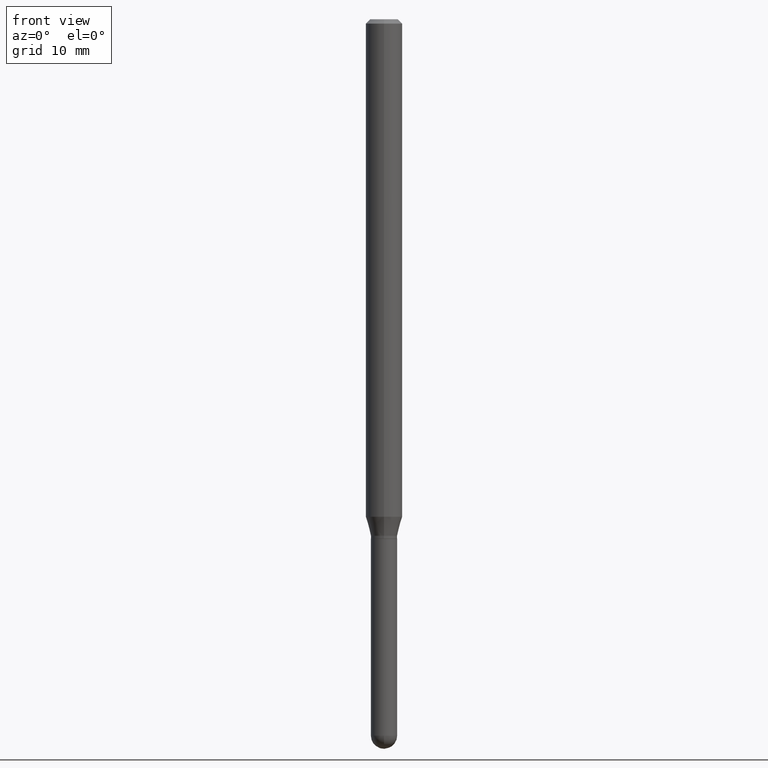
[diagram: clean part render]
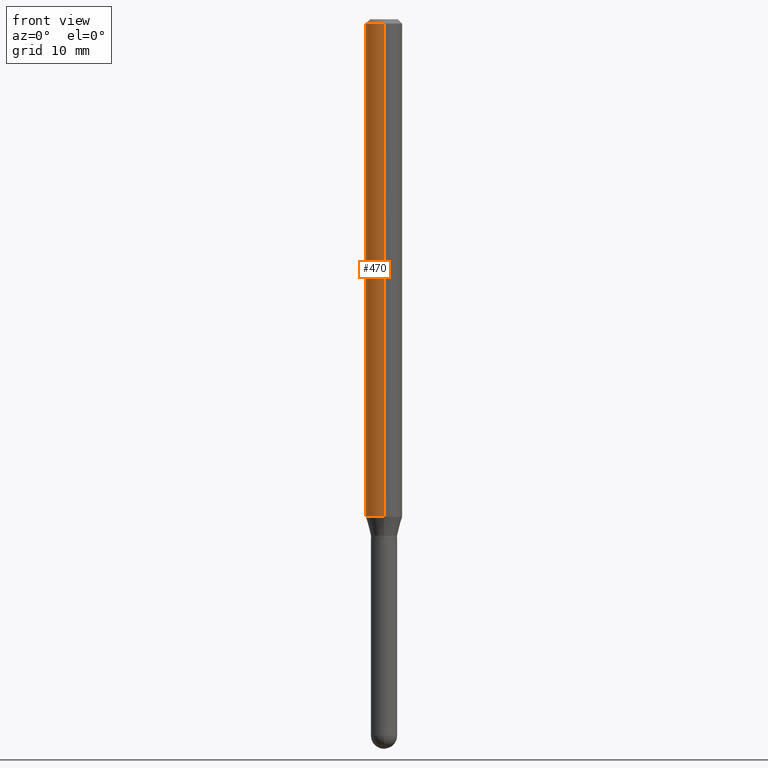
[diagram: same view with one face highlighted and labeled with its STEP entity id]
A machine part, front view. The second image highlights one B-rep face of the part: STEP entity #470.
In plain terms, the highlighted cylindrical surface (edge-blend (fillet) strip) has radius 1.5875 mm, axis along (-0, 0, 1).
Its self-contained STEP definition (entity closure, byte-faithful):
#9 = EDGE_CURVE ( 'NONE', #403, #158, #145, .T. ) ;
#28 = CARTESIAN_POINT ( 'NONE',  ( 4.440892098501046230E-16, 0.06249999999999995143, -0.01500000000000054588 ) ) ;
#37 = DIRECTION ( 'NONE',  ( -2.445386306518916251E-29, 3.491599483060762831E-15, 1.000000000000000000 ) ) ;
#42 = CARTESIAN_POINT ( 'NONE',  ( -4.364351673553912750E-16, -0.06250000000000005551, -0.01500000000000011047 ) ) ;
#46 = LINE ( 'NONE', #77, #51 ) ;
#51 = VECTOR ( 'NONE', #192, 39.37007874015748143 ) ;
#61 = DIRECTION ( 'NONE',  ( -2.445386306518916251E-29, 3.491599483060762831E-15, 1.000000000000000000 ) ) ;
#66 = LINE ( 'NONE', #461, #169 ) ;
#77 = CARTESIAN_POINT ( 'NONE',  ( -4.364351673553916201E-16, -0.06250000000000000000, 2.182249676912976770E-16 ) ) ;
#88 = VERTEX_POINT ( 'NONE', #28 ) ;
#99 = ORIENTED_EDGE ( 'NONE', *, *, #490, .T. ) ;
#135 = EDGE_CURVE ( 'NONE', #88, #172, #432, .T. ) ;
#144 = CARTESIAN_POINT ( 'NONE',  ( -4.364351673553497119E-16, -0.06250000000000591194, -1.704689110867545487 ) ) ;
#145 = CIRCLE ( 'NONE', #441, 0.06250000000000000000 ) ;
#158 = VERTEX_POINT ( 'NONE', #144 ) ;
#169 = VECTOR ( 'NONE', #61, 39.37007874015748143 ) ;
#172 = VERTEX_POINT ( 'NONE', #42 ) ;
#192 = DIRECTION ( 'NONE',  ( -2.445386306518916251E-29, 3.491599483060762831E-15, 1.000000000000000000 ) ) ;
#222 = CARTESIAN_POINT ( 'NONE',  ( 0.000000000000000000, 0.000000000000000000, 0.000000000000000000 ) ) ;
#224 = FACE_OUTER_BOUND ( 'NONE', #372, .T. ) ;
#248 = DIRECTION ( 'NONE',  ( -6.982962677686265922E-15, -1.000000000000000000, 4.370956789862821150E-15 ) ) ;
#253 = CARTESIAN_POINT ( 'NONE',  ( 4.168623408587402441E-29, -5.952091618284433970E-15, -1.704689110867545931 ) ) ;
#276 = ORIENTED_EDGE ( 'NONE', *, *, #135, .F. ) ;
#280 = EDGE_CURVE ( 'NONE', #403, #88, #66, .T. ) ;
#293 = CARTESIAN_POINT ( 'NONE',  ( 4.440892098501044258E-16, 0.06249999999999408112, -1.704689110867546153 ) ) ;
#307 = CYLINDRICAL_SURFACE ( 'NONE', #342, 0.06250000000000000000 ) ;
#340 = DIRECTION ( 'NONE',  ( -6.982962677686265922E-15, -1.000000000000000000, 3.491599483060762831E-15 ) ) ;
#342 = AXIS2_PLACEMENT_3D ( 'NONE', #222, #510, #340 ) ;
#372 = EDGE_LOOP ( 'NONE', ( #479, #433, #99, #276 ) ) ;
#384 = DIRECTION ( 'NONE',  ( -6.982962677686265922E-15, -1.000000000000000000, 3.483106191921935554E-15 ) ) ;
#403 = VERTEX_POINT ( 'NONE', #293 ) ;
#405 = DIRECTION ( 'NONE',  ( -2.445386306518916251E-29, 3.491599483060762831E-15, 1.000000000000000000 ) ) ;
#432 = CIRCLE ( 'NONE', #501, 0.06250000000000000000 ) ;
#433 = ORIENTED_EDGE ( 'NONE', *, *, #9, .T. ) ;
#441 = AXIS2_PLACEMENT_3D ( 'NONE', #253, #405, #248 ) ;
#461 = CARTESIAN_POINT ( 'NONE',  ( 4.440892098500625669E-16, 0.06250000000000000000, -2.182249676912976770E-16 ) ) ;
#463 = CARTESIAN_POINT ( 'NONE',  ( 3.668079459778454619E-31, -5.237399224591258336E-17, -0.01500000000000032904 ) ) ;
#470 = ADVANCED_FACE ( 'NONE', ( #224 ), #307, .T. ) ;
#479 = ORIENTED_EDGE ( 'NONE', *, *, #280, .F. ) ;
#490 = EDGE_CURVE ( 'NONE', #158, #172, #46, .T. ) ;
#501 = AXIS2_PLACEMENT_3D ( 'NONE', #463, #37, #384 ) ;
#510 = DIRECTION ( 'NONE',  ( -2.445386306518916251E-29, 3.491599483060762831E-15, 1.000000000000000000 ) ) ;